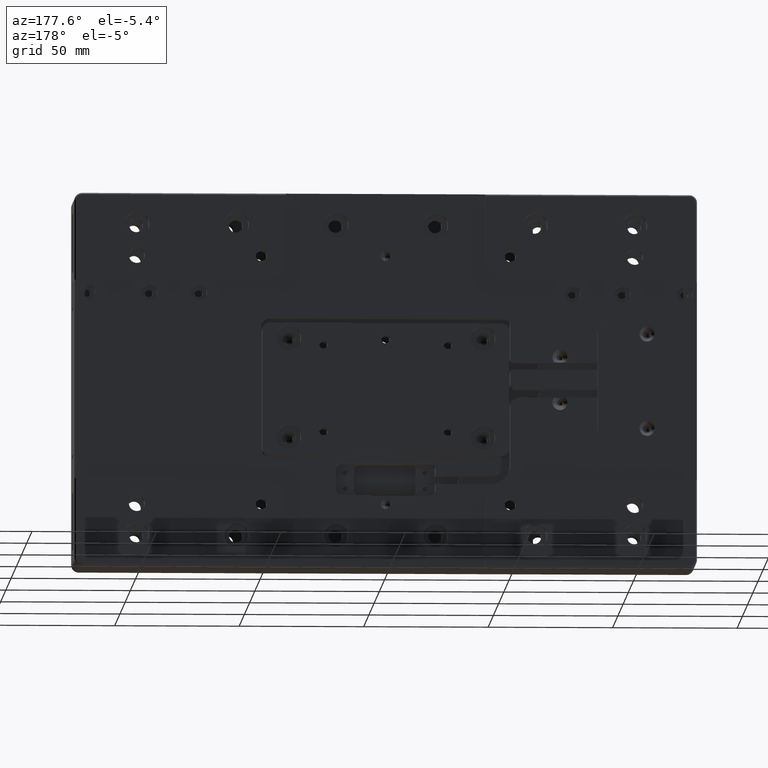
[diagram: clean part render]
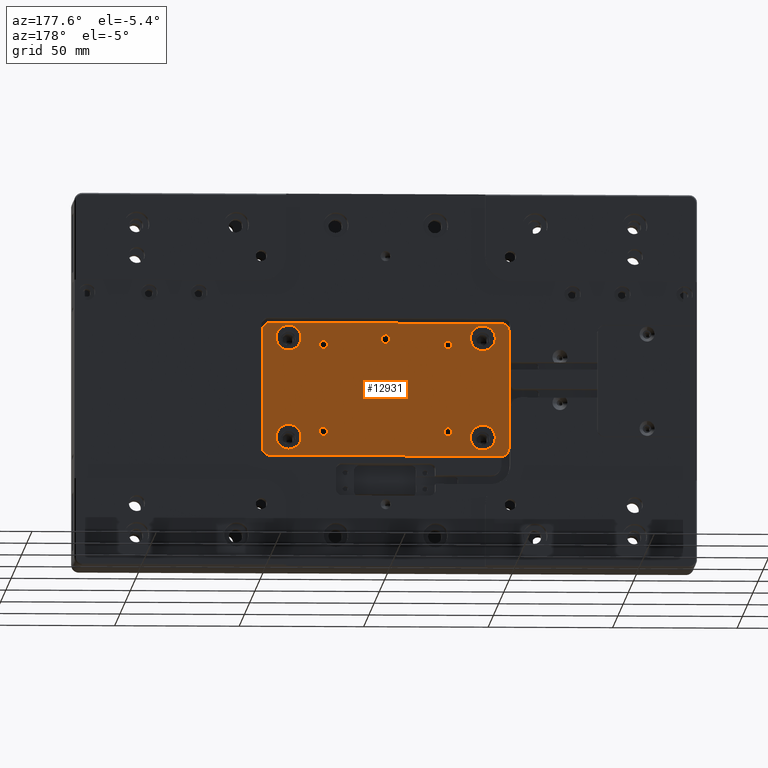
[diagram: same view with one face highlighted and labeled with its STEP entity id]
A machine part, auxiliary view. The second image highlights one B-rep face of the part: STEP entity #12931.
In plain terms, the highlighted planar face has unit normal (0, 1, 0).
Its self-contained STEP definition (entity closure, byte-faithful):
#293 = CIRCLE ( 'NONE', #7731, 2.999999999999999112 ) ;
#420 = CARTESIAN_POINT ( 'NONE',  ( 46.50000000000000000, 11.50000000000000000, -27.50000000000000000 ) ) ;
#615 = VERTEX_POINT ( 'NONE', #17560 ) ;
#855 = CIRCLE ( 'NONE', #8852, 5.000000000000000888 ) ;
#997 = DIRECTION ( 'NONE',  ( 0.000000000000000000, 0.000000000000000000, -1.000000000000000000 ) ) ;
#1007 = DIRECTION ( 'NONE',  ( -0.000000000000000000, -1.000000000000000000, -0.000000000000000000 ) ) ;
#1234 = PLANE ( 'NONE',  #33964 ) ;
#1409 = FACE_BOUND ( 'NONE', #32664, .T. ) ;
#1645 = VERTEX_POINT ( 'NONE', #22066 ) ;
#1713 = DIRECTION ( 'NONE',  ( 0.000000000000000000, 0.000000000000000000, -1.000000000000000000 ) ) ;
#1754 = DIRECTION ( 'NONE',  ( 0.000000000000000000, -1.000000000000000000, 0.000000000000000000 ) ) ;
#1835 = CIRCLE ( 'NONE', #9830, 5.000000000000000888 ) ;
#1888 = CARTESIAN_POINT ( 'NONE',  ( 39.00000000000000000, 11.50000000000000000, 17.00000000000000000 ) ) ;
#1990 = CARTESIAN_POINT ( 'NONE',  ( 49.50000000000000000, 11.50000000000000000, -27.50000000000000000 ) ) ;
#2324 = AXIS2_PLACEMENT_3D ( 'NONE', #27168, #13970, #14139 ) ;
#2457 = ORIENTED_EDGE ( 'NONE', *, *, #15813, .T. ) ;
#2772 = VERTEX_POINT ( 'NONE', #5455 ) ;
#2820 = AXIS2_PLACEMENT_3D ( 'NONE', #18321, #12962, #1713 ) ;
#2891 = CIRCLE ( 'NONE', #16020, 5.000000000000000888 ) ;
#3081 = DIRECTION ( 'NONE',  ( -0.000000000000000000, -1.000000000000000000, -0.000000000000000000 ) ) ;
#3523 = CARTESIAN_POINT ( 'NONE',  ( 25.00000000000000000, 11.50000000000000000, -20.75000000000000000 ) ) ;
#3702 = VERTEX_POINT ( 'NONE', #25302 ) ;
#3837 = EDGE_CURVE ( 'NONE', #2772, #2772, #855, .T. ) ;
#3849 = EDGE_CURVE ( 'NONE', #8637, #615, #293, .T. ) ;
#3869 = EDGE_LOOP ( 'NONE', ( #2457, #33145, #33183, #34131, #32563, #18362, #27476, #7837 ) ) ;
#3875 = DIRECTION ( 'NONE',  ( 0.000000000000000000, 0.000000000000000000, 1.000000000000000000 ) ) ;
#4270 = DIRECTION ( 'NONE',  ( 0.000000000000000000, 0.000000000000000000, -1.000000000000000000 ) ) ;
#4456 = DIRECTION ( 'NONE',  ( -0.000000000000000000, -1.000000000000000000, -0.000000000000000000 ) ) ;
#4531 = VERTEX_POINT ( 'NONE', #29791 ) ;
#4707 = EDGE_CURVE ( 'NONE', #24365, #24365, #30342, .T. ) ;
#4798 = CARTESIAN_POINT ( 'NONE',  ( 25.00000000000000000, 11.50000000000000000, 14.25000000000000000 ) ) ;
#4949 = CARTESIAN_POINT ( 'NONE',  ( -25.00000000000000000, 11.50000000000000000, -20.75000000000000000 ) ) ;
#5089 = CIRCLE ( 'NONE', #2820, 1.749999999999999778 ) ;
#5206 = CARTESIAN_POINT ( 'NONE',  ( -49.50000000000000000, 11.50000000000000000, 20.00000000000000000 ) ) ;
#5222 = AXIS2_PLACEMENT_3D ( 'NONE', #3523, #22605, #997 ) ;
#5455 = CARTESIAN_POINT ( 'NONE',  ( 39.00000000000000000, 11.50000000000000000, 22.00000000000000355 ) ) ;
#5824 = EDGE_CURVE ( 'NONE', #21854, #32385, #16395, .T. ) ;
#6086 = DIRECTION ( 'NONE',  ( -0.000000000000000000, -1.000000000000000000, -0.000000000000000000 ) ) ;
#6113 = CARTESIAN_POINT ( 'NONE',  ( -25.00000000000000000, 11.50000000000000000, 14.25000000000000000 ) ) ;
#6394 = CARTESIAN_POINT ( 'NONE',  ( 39.00000000000000000, 11.50000000000000000, -23.00000000000000000 ) ) ;
#6424 = CARTESIAN_POINT ( 'NONE',  ( -46.50000000000000000, 11.50000000000000000, 23.00000000000000000 ) ) ;
#6465 = EDGE_LOOP ( 'NONE', ( #12656 ) ) ;
#6782 = FACE_BOUND ( 'NONE', #25879, .T. ) ;
#7199 = EDGE_LOOP ( 'NONE', ( #12661 ) ) ;
#7310 = FACE_OUTER_BOUND ( 'NONE', #3869, .T. ) ;
#7731 = AXIS2_PLACEMENT_3D ( 'NONE', #10103, #29874, #16475 ) ;
#7784 = CIRCLE ( 'NONE', #8369, 1.650000000000000355 ) ;
#7837 = ORIENTED_EDGE ( 'NONE', *, *, #3849, .T. ) ;
#8242 = EDGE_LOOP ( 'NONE', ( #22747 ) ) ;
#8369 = AXIS2_PLACEMENT_3D ( 'NONE', #4798, #1754, #4270 ) ;
#8532 = CARTESIAN_POINT ( 'NONE',  ( -25.00000000000000000, 11.50000000000000000, 12.59999999999999964 ) ) ;
#8637 = VERTEX_POINT ( 'NONE', #12482 ) ;
#8700 = EDGE_CURVE ( 'NONE', #34333, #21854, #18696, .T. ) ;
#8852 = AXIS2_PLACEMENT_3D ( 'NONE', #1888, #3081, #13808 ) ;
#8977 = AXIS2_PLACEMENT_3D ( 'NONE', #35139, #10853, #29799 ) ;
#9278 = FACE_BOUND ( 'NONE', #11908, .T. ) ;
#9632 = FACE_BOUND ( 'NONE', #8242, .T. ) ;
#9830 = AXIS2_PLACEMENT_3D ( 'NONE', #6394, #1007, #3875 ) ;
#9978 = FACE_BOUND ( 'NONE', #7199, .T. ) ;
#10103 = CARTESIAN_POINT ( 'NONE',  ( 46.50000000000000000, 11.50000000000000000, 20.00000000000000000 ) ) ;
#10249 = EDGE_CURVE ( 'NONE', #18232, #18232, #1835, .T. ) ;
#10853 = DIRECTION ( 'NONE',  ( 0.000000000000000000, 1.000000000000000000, 0.000000000000000000 ) ) ;
#10859 = EDGE_LOOP ( 'NONE', ( #35253 ) ) ;
#10950 = CARTESIAN_POINT ( 'NONE',  ( -39.00000000000000000, 11.50000000000000000, -18.00000000000000000 ) ) ;
#11182 = LINE ( 'NONE', #27080, #13615 ) ;
#11658 = AXIS2_PLACEMENT_3D ( 'NONE', #420, #22751, #25255 ) ;
#11908 = EDGE_LOOP ( 'NONE', ( #33626 ) ) ;
#11945 = DIRECTION ( 'NONE',  ( 0.000000000000000000, -0.000000000000000000, 1.000000000000000000 ) ) ;
#12041 = EDGE_CURVE ( 'NONE', #25034, #4531, #27045, .T. ) ;
#12482 = CARTESIAN_POINT ( 'NONE',  ( 46.49999997590000334, 11.50000000000000000, 23.00000000000000000 ) ) ;
#12656 = ORIENTED_EDGE ( 'NONE', *, *, #30731, .T. ) ;
#12661 = ORIENTED_EDGE ( 'NONE', *, *, #10249, .T. ) ;
#12756 = DIRECTION ( 'NONE',  ( 1.000000000000000000, 0.000000000000000000, -0.000000000000000000 ) ) ;
#12920 = LINE ( 'NONE', #13096, #20877 ) ;
#12926 = CARTESIAN_POINT ( 'NONE',  ( -25.00000000000000000, 11.50000000000000000, -22.39999999999999858 ) ) ;
#12931 = ADVANCED_FACE ( 'NONE', ( #9278, #17848, #9978, #9632, #14819, #1409, #20863, #23193, #6782, #7310 ), #1234, .T. ) ;
#12962 = DIRECTION ( 'NONE',  ( 0.000000000000000000, -1.000000000000000000, 0.000000000000000000 ) ) ;
#13096 = CARTESIAN_POINT ( 'NONE',  ( 0.000000000000000000, 11.50000000000000000, 23.00000000000000000 ) ) ;
#13131 = VECTOR ( 'NONE', #34964, 1000.000000000000000 ) ;
#13615 = VECTOR ( 'NONE', #22057, 1000.000000000000000 ) ;
#13808 = DIRECTION ( 'NONE',  ( 0.000000000000000000, 0.000000000000000000, 1.000000000000000000 ) ) ;
#13900 = VERTEX_POINT ( 'NONE', #19058 ) ;
#13970 = DIRECTION ( 'NONE',  ( 0.000000000000000000, 1.000000000000000000, 0.000000000000000000 ) ) ;
#13974 = DIRECTION ( 'NONE',  ( -0.000000000000000000, 0.000000000000000000, -1.000000000000000000 ) ) ;
#14139 = DIRECTION ( 'NONE',  ( 0.000000000000000000, 0.000000000000000000, 1.000000000000000000 ) ) ;
#14785 = CIRCLE ( 'NONE', #23899, 1.650000000000000355 ) ;
#14819 = FACE_BOUND ( 'NONE', #24742, .T. ) ;
#15327 = CIRCLE ( 'NONE', #22155, 1.649999999999998579 ) ;
#15813 = EDGE_CURVE ( 'NONE', #615, #25034, #22165, .T. ) ;
#15815 = CARTESIAN_POINT ( 'NONE',  ( 25.00000000000000000, 11.50000000000000000, -22.39999999999999858 ) ) ;
#15840 = DIRECTION ( 'NONE',  ( 0.000000000000000000, 0.000000000000000000, -1.000000000000000000 ) ) ;
#16020 = AXIS2_PLACEMENT_3D ( 'NONE', #26242, #4456, #31606 ) ;
#16141 = VERTEX_POINT ( 'NONE', #10950 ) ;
#16378 = EDGE_CURVE ( 'NONE', #26240, #26240, #7784, .T. ) ;
#16395 = CIRCLE ( 'NONE', #8977, 2.999999999999999112 ) ;
#16475 = DIRECTION ( 'NONE',  ( 0.000000000000000000, 0.000000000000000000, 1.000000000000000000 ) ) ;
#16972 = DIRECTION ( 'NONE',  ( 0.000000000000000000, 0.000000000000000000, 1.000000000000000000 ) ) ;
#17560 = CARTESIAN_POINT ( 'NONE',  ( 49.50000000000000000, 11.50000000000000000, 20.00000000000000000 ) ) ;
#17709 = AXIS2_PLACEMENT_3D ( 'NONE', #30548, #6086, #16972 ) ;
#17848 = FACE_BOUND ( 'NONE', #24649, .T. ) ;
#18232 = VERTEX_POINT ( 'NONE', #34832 ) ;
#18321 = CARTESIAN_POINT ( 'NONE',  ( 0.000000000000000000, 11.50000000000000000, 16.57000000000000028 ) ) ;
#18362 = ORIENTED_EDGE ( 'NONE', *, *, #5824, .T. ) ;
#18696 = LINE ( 'NONE', #31941, #13131 ) ;
#19058 = CARTESIAN_POINT ( 'NONE',  ( 0.000000000000000000, 11.50000000000000000, 14.82000000000000206 ) ) ;
#19161 = EDGE_CURVE ( 'NONE', #27105, #27105, #14785, .T. ) ;
#19636 = EDGE_CURVE ( 'NONE', #13900, #13900, #5089, .T. ) ;
#19662 = CARTESIAN_POINT ( 'NONE',  ( -49.50000000000000000, 11.50000000000000000, -27.50000000000000000 ) ) ;
#20863 = FACE_BOUND ( 'NONE', #10859, .T. ) ;
#20877 = VECTOR ( 'NONE', #12756, 1000.000000000000000 ) ;
#21320 = VECTOR ( 'NONE', #13974, 1000.000000000000000 ) ;
#21854 = VERTEX_POINT ( 'NONE', #5206 ) ;
#22025 = EDGE_CURVE ( 'NONE', #3702, #3702, #33109, .T. ) ;
#22057 = DIRECTION ( 'NONE',  ( -1.000000000000000000, -0.000000000000000000, 0.000000000000000000 ) ) ;
#22066 = CARTESIAN_POINT ( 'NONE',  ( -46.50000000000000000, 11.50000000000000000, -30.50000000000000000 ) ) ;
#22155 = AXIS2_PLACEMENT_3D ( 'NONE', #4949, #35302, #15840 ) ;
#22165 = LINE ( 'NONE', #35042, #21320 ) ;
#22282 = EDGE_CURVE ( 'NONE', #1645, #34333, #22284, .T. ) ;
#22284 = CIRCLE ( 'NONE', #2324, 2.999999999999999112 ) ;
#22605 = DIRECTION ( 'NONE',  ( 0.000000000000000000, -1.000000000000000000, 0.000000000000000000 ) ) ;
#22747 = ORIENTED_EDGE ( 'NONE', *, *, #22025, .T. ) ;
#22751 = DIRECTION ( 'NONE',  ( 0.000000000000000000, 1.000000000000000000, 0.000000000000000000 ) ) ;
#23023 = DIRECTION ( 'NONE',  ( 0.000000000000000000, 1.000000000000000000, 0.000000000000000000 ) ) ;
#23193 = FACE_BOUND ( 'NONE', #6465, .T. ) ;
#23899 = AXIS2_PLACEMENT_3D ( 'NONE', #6113, #33435, #34325 ) ;
#24365 = VERTEX_POINT ( 'NONE', #15815 ) ;
#24649 = EDGE_LOOP ( 'NONE', ( #28474 ) ) ;
#24659 = EDGE_CURVE ( 'NONE', #32385, #8637, #12920, .T. ) ;
#24742 = EDGE_LOOP ( 'NONE', ( #31125 ) ) ;
#25034 = VERTEX_POINT ( 'NONE', #1990 ) ;
#25255 = DIRECTION ( 'NONE',  ( 0.000000000000000000, 0.000000000000000000, 1.000000000000000000 ) ) ;
#25302 = CARTESIAN_POINT ( 'NONE',  ( -39.00000000000000000, 11.50000000000000000, 22.00000000000000355 ) ) ;
#25879 = EDGE_LOOP ( 'NONE', ( #32810 ) ) ;
#26240 = VERTEX_POINT ( 'NONE', #34610 ) ;
#26242 = CARTESIAN_POINT ( 'NONE',  ( -39.00000000000000000, 11.50000000000000000, -23.00000000000000000 ) ) ;
#26959 = EDGE_CURVE ( 'NONE', #4531, #1645, #11182, .T. ) ;
#27045 = CIRCLE ( 'NONE', #11658, 2.999999999999999112 ) ;
#27080 = CARTESIAN_POINT ( 'NONE',  ( 0.000000000000000000, 11.50000000000000000, -30.50000000000000000 ) ) ;
#27105 = VERTEX_POINT ( 'NONE', #8532 ) ;
#27168 = CARTESIAN_POINT ( 'NONE',  ( -46.50000000000000000, 11.50000000000000000, -27.50000000000000000 ) ) ;
#27476 = ORIENTED_EDGE ( 'NONE', *, *, #24659, .T. ) ;
#28474 = ORIENTED_EDGE ( 'NONE', *, *, #3837, .T. ) ;
#28915 = CARTESIAN_POINT ( 'NONE',  ( 0.000000000000000000, 11.50000000000000000, 0.000000000000000000 ) ) ;
#29527 = ORIENTED_EDGE ( 'NONE', *, *, #19161, .T. ) ;
#29791 = CARTESIAN_POINT ( 'NONE',  ( 46.50000000000000000, 11.50000000000000000, -30.50000000000000000 ) ) ;
#29799 = DIRECTION ( 'NONE',  ( 0.000000000000000000, 0.000000000000000000, 1.000000000000000000 ) ) ;
#29874 = DIRECTION ( 'NONE',  ( 0.000000000000000000, 1.000000000000000000, 0.000000000000000000 ) ) ;
#30342 = CIRCLE ( 'NONE', #5222, 1.649999999999998579 ) ;
#30548 = CARTESIAN_POINT ( 'NONE',  ( -39.00000000000000000, 11.50000000000000000, 17.00000000000000000 ) ) ;
#30731 = EDGE_CURVE ( 'NONE', #32043, #32043, #15327, .T. ) ;
#31125 = ORIENTED_EDGE ( 'NONE', *, *, #33675, .T. ) ;
#31606 = DIRECTION ( 'NONE',  ( 0.000000000000000000, 0.000000000000000000, 1.000000000000000000 ) ) ;
#31941 = CARTESIAN_POINT ( 'NONE',  ( -49.50000000000000000, 11.50000000000000000, 0.000000000000000000 ) ) ;
#32043 = VERTEX_POINT ( 'NONE', #12926 ) ;
#32385 = VERTEX_POINT ( 'NONE', #6424 ) ;
#32563 = ORIENTED_EDGE ( 'NONE', *, *, #8700, .T. ) ;
#32664 = EDGE_LOOP ( 'NONE', ( #29527 ) ) ;
#32810 = ORIENTED_EDGE ( 'NONE', *, *, #4707, .T. ) ;
#33109 = CIRCLE ( 'NONE', #17709, 5.000000000000000888 ) ;
#33145 = ORIENTED_EDGE ( 'NONE', *, *, #12041, .T. ) ;
#33183 = ORIENTED_EDGE ( 'NONE', *, *, #26959, .T. ) ;
#33435 = DIRECTION ( 'NONE',  ( 0.000000000000000000, -1.000000000000000000, 0.000000000000000000 ) ) ;
#33626 = ORIENTED_EDGE ( 'NONE', *, *, #19636, .T. ) ;
#33675 = EDGE_CURVE ( 'NONE', #16141, #16141, #2891, .T. ) ;
#33964 = AXIS2_PLACEMENT_3D ( 'NONE', #28915, #23023, #11945 ) ;
#34131 = ORIENTED_EDGE ( 'NONE', *, *, #22282, .T. ) ;
#34325 = DIRECTION ( 'NONE',  ( 0.000000000000000000, 0.000000000000000000, -1.000000000000000000 ) ) ;
#34333 = VERTEX_POINT ( 'NONE', #19662 ) ;
#34610 = CARTESIAN_POINT ( 'NONE',  ( 25.00000000000000000, 11.50000000000000000, 12.59999999999999964 ) ) ;
#34832 = CARTESIAN_POINT ( 'NONE',  ( 39.00000000000000000, 11.50000000000000000, -18.00000000000000000 ) ) ;
#34964 = DIRECTION ( 'NONE',  ( 0.000000000000000000, -0.000000000000000000, 1.000000000000000000 ) ) ;
#35042 = CARTESIAN_POINT ( 'NONE',  ( 49.50000000000000000, 11.50000000000000000, 0.000000000000000000 ) ) ;
#35139 = CARTESIAN_POINT ( 'NONE',  ( -46.50000000000000000, 11.50000000000000000, 20.00000000000000000 ) ) ;
#35253 = ORIENTED_EDGE ( 'NONE', *, *, #16378, .T. ) ;
#35302 = DIRECTION ( 'NONE',  ( 0.000000000000000000, -1.000000000000000000, 0.000000000000000000 ) ) ;